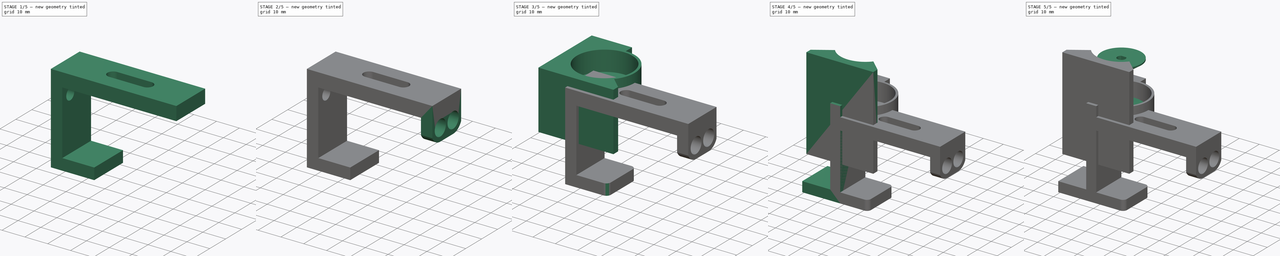
[diagram: build sequence overview — one tinted view per stage of 5, left to right]
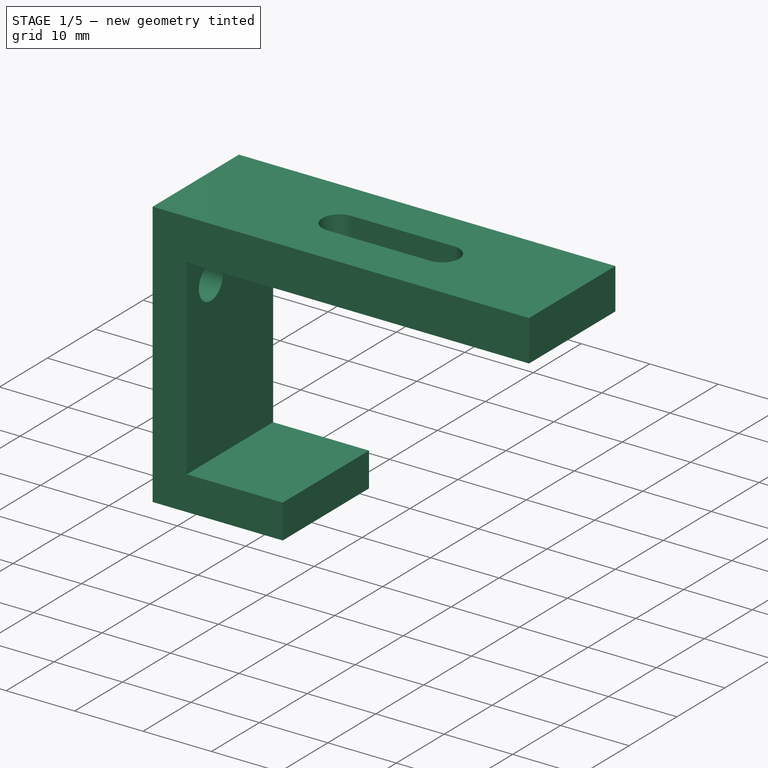
[diagram: stage 1 of 5 — iso view after this stage's code; geometry added in this stage tinted green]
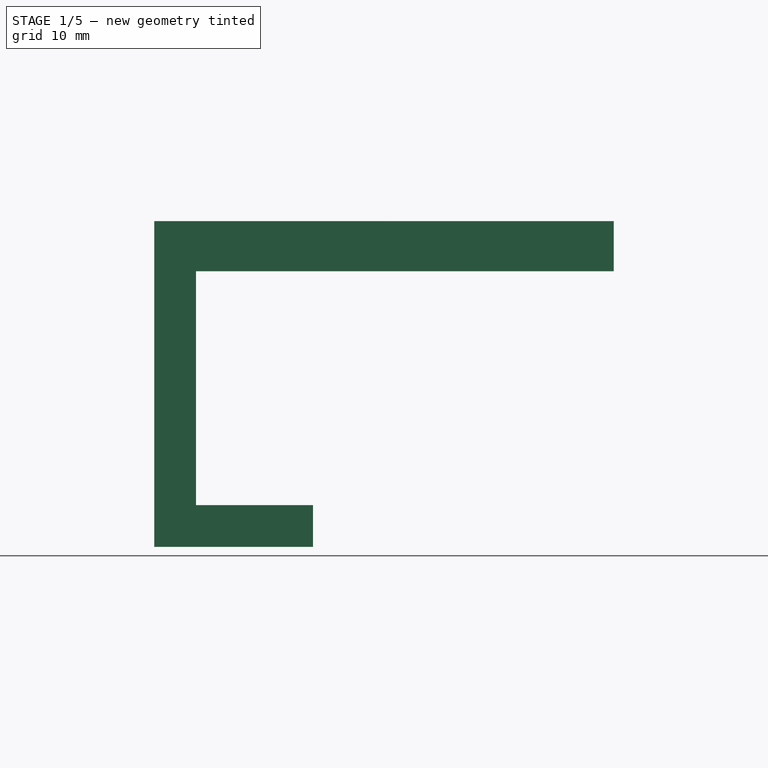
[diagram: stage 1 of 5 — front view after this stage's code; geometry added in this stage tinted green]
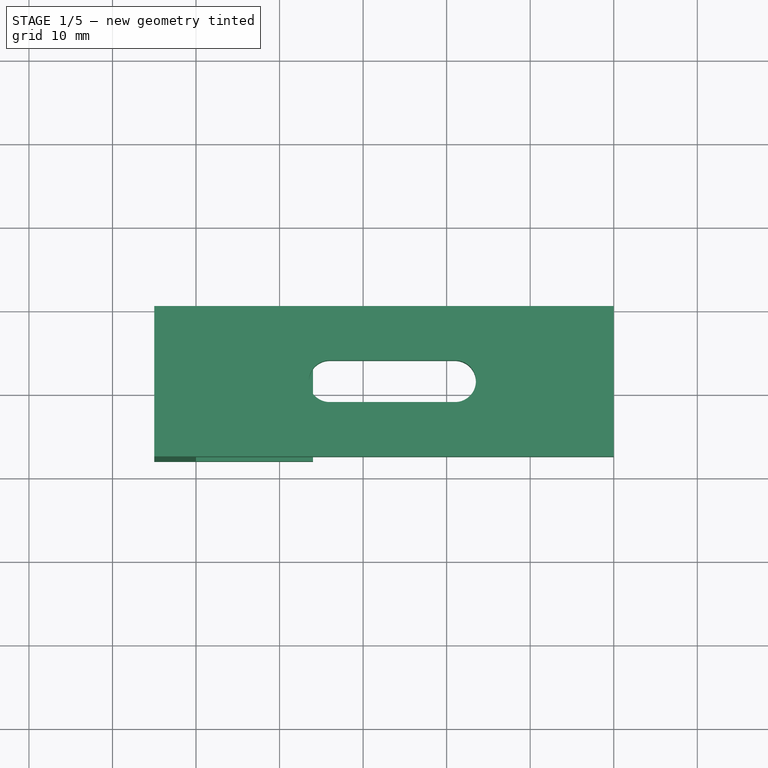
[diagram: stage 1 of 5 — top view after this stage's code; geometry added in this stage tinted green]
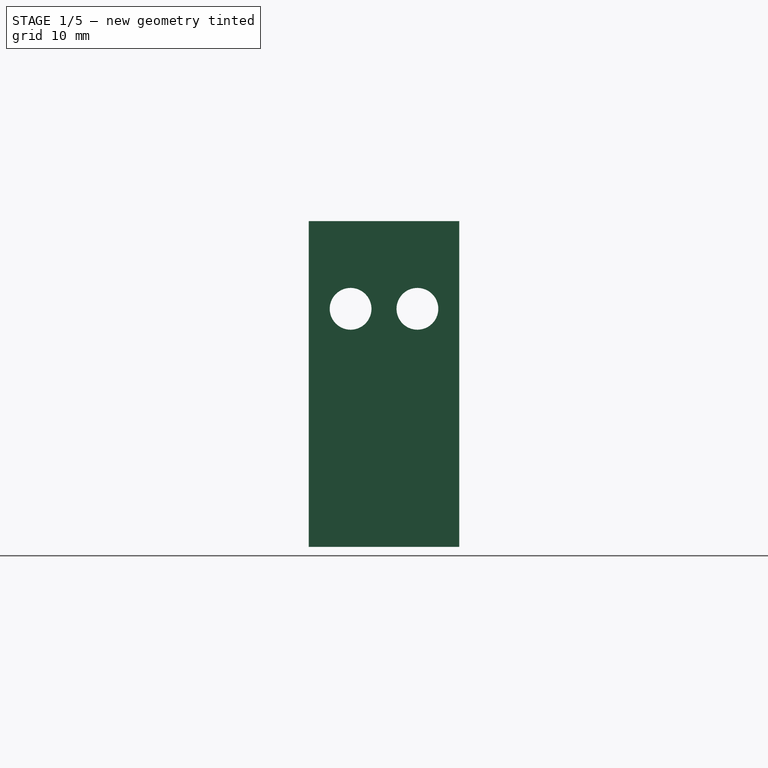
[diagram: stage 1 of 5 — right view after this stage's code; geometry added in this stage tinted green]
FCSTD DOCUMENT  (FreeCAD 1.0R39109 (Git))
Label: 25GA370MotorHolder
License: All rights reserved
LicenseURL: http://en.wikipedia.org/wiki/All_rights_reserved
objects: Sketcher::SketchObject×23, PartDesign::Pad×12, PartDesign::Pocket×10, PartDesign::Body×6, App::VarSet×1, Spreadsheet::Sheet×1, PartDesign::Groove×1
note: 121 computed .brp shape members not serialized (recipe doc carries the construction recipe); baked Part::Feature solids carry a one-line shape summary decoded from their .brp

FEATURE [PartDesign::Body] Body  label="MotorConnector"
  AllowCompound = false
  Group = -> [Sketch,Pad,Sketch001,Groove,Sketch006,Pocket]
  Origin = -> Origin
  Placement = pos=(0,0,-5) rot=(0,1,0;3.14159rad)
  Tip = -> Pocket
FEATURE [PartDesign::Body] Body004  label="Body"
  AllowCompound = false
  Origin = -> Origin004
FEATURE [Sketcher::SketchObject] Sketch007
  ArcFitTolerance = 1e-06
  AttachmentSupport = -> [XZ_Plane003]
  FullyConstrained = false
  MakeInternals = false
  MapMode = 5
  Placement = pos=(0,0,0) rot=(1,0,0;1.5708rad)
  expr: Constraints[14] = VarSet.blindTopBottomSupport
  expr: Constraints[15] = VarSet.blindTopHeight
  expr: Constraints[17] = VarSet.blindTopThickness
  expr: Constraints[18] = VarSet.blindTopWidth
  expr: Constraints[23] = VarSet.blindTopThickness
  expr: Constraints[38] = VarSet.blindTopConnThickness
  expr: Constraints[45] = VarSet.blindTopThickness
  sketch-geometry (19):
    g0: LineSegment [constr] StartX=0 StartY=0 StartZ=0 EndX=0 EndY=-28 EndZ=0
    g1: LineSegment [constr] StartX=0 StartY=-28 StartZ=0 EndX=14 EndY=-28 EndZ=0
    g2: LineSegment [constr] StartX=45 StartY=-28 StartZ=0 EndX=45 EndY=0 EndZ=0
    g3: LineSegment [constr] StartX=45 StartY=0 StartZ=0 EndX=0 EndY=0 EndZ=0
    g4: LineSegment [constr] StartX=-5 StartY=6 StartZ=0 EndX=-5 EndY=-33 EndZ=0
    g5: LineSegment [constr] StartX=-5 StartY=-33 StartZ=0 EndX=14 EndY=-33 EndZ=0
    g6: LineSegment [constr] StartX=43.6703 StartY=6 StartZ=0 EndX=-5 EndY=6 EndZ=0
    g7: LineSegment [constr] StartX=14 StartY=-28 StartZ=0 EndX=14 EndY=-33 EndZ=0
    g8: LineSegment [constr] StartX=14 StartY=-28 StartZ=0 EndX=31 EndY=-28 EndZ=0
    g9: LineSegment [constr] StartX=14 StartY=-33 StartZ=0 EndX=31 EndY=-33 EndZ=0
    g10: LineSegment StartX=0 StartY=0 StartZ=0 EndX=45 EndY=0 EndZ=0
    g11: LineSegment StartX=50 StartY=6 StartZ=0 EndX=-5 EndY=6 EndZ=0
    g12: LineSegment StartX=-5 StartY=6 StartZ=0 EndX=-5 EndY=-33 EndZ=0
    g13: LineSegment StartX=-5 StartY=-33 StartZ=0 EndX=14 EndY=-33 EndZ=0
    g14: LineSegment StartX=14 StartY=-33 StartZ=0 EndX=14 EndY=-28 EndZ=0
    g15: LineSegment StartX=14 StartY=-28 StartZ=0 EndX=0 EndY=-28 EndZ=0
    g16: LineSegment StartX=0 StartY=-28 StartZ=0 EndX=0 EndY=0 EndZ=0
    g17: LineSegment StartX=50 StartY=6 StartZ=0 EndX=50 EndY=0 EndZ=0
    g18: LineSegment StartX=50 StartY=0 StartZ=0 EndX=45 EndY=0 EndZ=0
  constraints (46):
    c: Coincident(g0,g1)
    c: Coincident(g2,g3)
    c: Coincident(g3,g0)
    c: Vertical(g0)
    c: Vertical(g2)
    c: Horizontal(g1)
    c: Horizontal(g3)
    c: Coincident(g6,g4)
    c: Vertical(g4)
    c: Horizontal(g5)
    c: Horizontal(g6)
    c: Vertical(g7)
    c: Coincident(g1,g7)
    c: Coincident(g5,g7)
    c: DistanceX(g1,g1) = 14
    c: DistanceY(g0,g0) = 28
    c: Coincident(g5,g4)
    c: DistanceY(g4,g0) = 5
    c: DistanceX(g3,g3) = 45
    c: Coincident(g8,g1)
    c: Coincident(g9,g5)
    c: Horizontal(g9)
    c: Horizontal(g8)
    c: DistanceX(g4,g0) = 5
    c: Coincident(g0,g-1)
    c: Coincident(g10,g0)
    c: Coincident(g10,g2)
    c: Coincident(g11,g4)
    c: Coincident(g12,g4)
    c: Coincident(g12,g4)
    c: Coincident(g13,g4)
    c: Coincident(g13,g5)
    c: Coincident(g14,g5)
    c: Coincident(g14,g1)
    c: Coincident(g15,g1)
    c: Coincident(g15,g0)
    c: Coincident(g16,g0)
    c: Coincident(g16,g0)
    c: DistanceY(g0,g4) = 6
    c: Horizontal(g11)
    c: Coincident(g17,g11)
    c: Vertical(g17)
    c: Coincident(g18,g17)
    c: Coincident(g18,g2)
    c: Horizontal(g18)
    c: DistanceX(g2,g17) = 5
FEATURE [PartDesign::Pad] Pad004
  Direction = (0,-1,2e-16)
  Length = 18
  Length2 = 10
  Placement = pos=(0,0,0) rot=(1,0,0;1.5708rad)
  Profile = -> Sketch007
  ReferenceAxis = -> Sketch007 [N_Axis]
  Refine = true
  Suppressed = false
  Type = 0
  expr: Length = VarSet.blindTopPad
FEATURE [Sketcher::SketchObject] Sketch008
  ArcFitTolerance = 1e-06
  AttachmentSupport = -> [XY_Plane003]
  FullyConstrained = true
  MakeInternals = false
  MapMode = 5
  expr: Constraints[10] = -VarSet.originalTopBlindHangerWidth / 2 + VarSet.blindScrewHoleR / 2
  expr: Constraints[8] = 25 mm - VarSet.blindTopThickness - 4 mm
  expr: Constraints[9] = VarSet.blindScrewHoleR
  sketch-geometry (8):
    g0: LineSegment [constr] StartX=16 StartY=-6.5 StartZ=0 EndX=16 EndY=-11.5 EndZ=0
    g1: LineSegment [constr] StartX=16 StartY=-11.5 StartZ=0 EndX=31 EndY=-11.5 EndZ=0
    g2: LineSegment [constr] StartX=31 StartY=-11.5 StartZ=0 EndX=31 EndY=-6.5 EndZ=0
    g3: LineSegment [constr] StartX=31 StartY=-6.5 StartZ=0 EndX=16 EndY=-6.5 EndZ=0
    g4: ArcOfCircle CenterX=16 CenterY=-9 CenterZ=0 NormalX=0 NormalY=0 NormalZ=1 AngleXU=0 Radius=2.5 StartAngle=1.5708 EndAngle=4.71239
    g5: ArcOfCircle CenterX=31 CenterY=-9 CenterZ=0 NormalX=0 NormalY=0 NormalZ=1 AngleXU=0 Radius=2.5 StartAngle=4.71239 EndAngle=7.85398
    g6: LineSegment StartX=16 StartY=-6.5 StartZ=0 EndX=31 EndY=-6.5 EndZ=0
    g7: LineSegment StartX=16 StartY=-11.5 StartZ=0 EndX=31 EndY=-11.5 EndZ=0
  constraints (19):
    c: Coincident(g0,g1)
    c: Coincident(g1,g2)
    c: Coincident(g2,g3)
    c: Coincident(g3,g0)
    c: Vertical(g0)
    c: Vertical(g2)
    c: Horizontal(g1)
    c: DistanceX(g3,g3) = 15
    c: DistanceX(g-1,g0) = 16
    c: DistanceY(g0,g0) = 5
    c: DistanceY(g-1,g0) = -6.5
    c: Tangent(g4,g6) = 1.5708
    c: Tangent(g4,g7) = -1.5708
    c: Tangent(g5,g6) = 1.5708
    c: Tangent(g5,g7) = -1.5708
    c: Equal(g4,g5)
    c: Symmetric(g0,g0,g4)
    c: Coincident(g4,g0)
    c: Coincident(g5,g2)
FEATURE [PartDesign::Pocket] Pocket001
  BaseFeature = -> Pad004
  Direction = (0,0,-1)
  Length = 5
  Length2 = 5
  Placement = pos=(0,0,0) rot=(1,0,0;1.5708rad)
  Profile = -> Sketch008
  ReferenceAxis = -> Sketch008 [N_Axis]
  Refine = true
  Reversed = true
  Suppressed = false
  Type = 1
FEATURE [Sketcher::SketchObject] Sketch009
  ArcFitTolerance = 1e-06
  AttachmentSupport = -> [YZ_Plane003]
  FullyConstrained = true
  MakeInternals = false
  MapMode = 5
  Placement = pos=(0,0,0) rot=(0.57735,0.57735,0.57735;2.0944rad)
  expr: Constraints[0] = VarSet.blindScrewHoleR
  expr: Constraints[1] = 7 mm + VarSet.blindScrewHoleR / 2 - VarSet.blindTopThickness
  expr: Constraints[2] = VarSet.blindTopSideScrewHoleToSide
  expr: Constraints[7] = VarSet.blindTopPad - VarSet.blindTopSideScrewHoleToSide
  sketch-geometry (3):
    g0: Circle CenterX=-5 CenterY=-4.5 CenterZ=0 NormalX=0 NormalY=0 NormalZ=1 AngleXU=0 Radius=2.5
    g1: Circle CenterX=-13 CenterY=-4.5 CenterZ=0 NormalX=0 NormalY=0 NormalZ=1 AngleXU=0 Radius=2.5
    g2: LineSegment [constr] StartX=-5 StartY=-4.5 StartZ=0 EndX=-13 EndY=-4.5 EndZ=0
  constraints (8):
    c: Diameter(g0) = 5
    c: DistanceY(g0,g-1) = 4.5
    c: DistanceX(g0,g-1) = 5
    c: Coincident(g2,g0)
    c: Coincident(g2,g1)
    c: Horizontal(g2)
    c: Equal(g1,g0)
    c: DistanceX(g1,g-1) = 13
FEATURE [PartDesign::Pocket] Pocket002
  BaseFeature = -> Pocket001
  Direction = (-1,0,0)
  Length = 5
  Length2 = 5
  Placement = pos=(0,0,0) rot=(1,0,0;1.5708rad)
  Profile = -> Sketch009
  ReferenceAxis = -> Sketch009 [N_Axis]
  Refine = true
  Suppressed = false
  Type = 1
FEATURE [Sketcher::SketchObject] Sketch010
  ArcFitTolerance = 1e-06
  AttachmentOffset = pos=(0,0,45) rot=(0,0,1;0rad)
  AttachmentSupport = -> [YZ_Plane003]
  FullyConstrained = true
  MakeInternals = false
  MapMode = 5
  Placement = pos=(45,0,0) rot=(0.57735,0.57735,0.57735;2.0944rad)
  expr: .AttachmentOffset.Base.z = VarSet.blindTopWidth
  expr: Constraints[5] = VarSet.m3ScrewTight
  expr: Constraints[7] = VarSet.blindTopConnThickness / 2
  sketch-geometry (3):
    g0: Circle CenterX=-4.5 CenterY=3 CenterZ=0 NormalX=0 NormalY=0 NormalZ=1 AngleXU=0 Radius=1.4
    g1: LineSegment [constr] StartX=-4.5 StartY=3 StartZ=0 EndX=-10.5 EndY=3 EndZ=0
    g2: Circle CenterX=-10.5 CenterY=3 CenterZ=0 NormalX=0 NormalY=0 NormalZ=1 AngleXU=0 Radius=1.4
  constraints (8):
    c: Coincident(g1,g0)
    c: Horizontal(g1)
    c: DistanceX(g1,g1) = 6
    c: DistanceX(g0,g-1) = 4.5
    c: Coincident(g2,g1)
    c: Radius(g2) = 1.4
    c: Equal(g2,g0)
    c: DistanceY(g-1,g0) = 3
FEATURE [PartDesign::Pocket] Pocket003
  BaseFeature = -> Pocket002
  Direction = (-1,0,0)
  Length = 15
  Length2 = 5
  Placement = pos=(0,0,0) rot=(1,0,0;1.5708rad)
  Profile = -> Sketch010
  ReferenceAxis = -> Sketch010 [N_Axis]
  Refine = true
  Suppressed = true
  Type = 1
FEATURE [Sketcher::SketchObject] Sketch011
  ArcFitTolerance = 1e-06
  AttachmentSupport = -> [XZ_Plane005]
  FullyConstrained = false
  MakeInternals = false
  MapMode = 5
  Placement = pos=(0,0,0) rot=(1,0,0;1.5708rad)
  expr: Constraints[10] = VarSet.blindTopThickness
  expr: Constraints[11] = VarSet.blindTopBottomSupport
  expr: Constraints[16] = VarSet.blindTopConnThickness
  expr: Constraints[24] = VarSet.blindTopThickness
  expr: Constraints[9] = VarSet.blindTopThickness
  sketch-geometry (9):
    g0: LineSegment StartX=-5 StartY=6 StartZ=0 EndX=-5 EndY=-28 EndZ=0
    g1: LineSegment StartX=0 StartY=6 StartZ=0 EndX=0 EndY=-33 EndZ=0
    g2: LineSegment StartX=0 StartY=-33 StartZ=0 EndX=-19 EndY=-33 EndZ=0
    g3: LineSegment StartX=-19 StartY=-33 StartZ=0 EndX=-19 EndY=-28 EndZ=0
    g4: LineSegment StartX=-19 StartY=-28 StartZ=0 EndX=-5 EndY=-28 EndZ=0
    g5: LineSegment [constr] StartX=-5 StartY=6 StartZ=0 EndX=0 EndY=6 EndZ=0
    g6: LineSegment StartX=-5 StartY=6 StartZ=0 EndX=-5 EndY=11 EndZ=0
    g7: LineSegment StartX=-5 StartY=11 StartZ=0 EndX=0 EndY=11 EndZ=0
    g8: LineSegment StartX=0 StartY=11 StartZ=0 EndX=0 EndY=6 EndZ=0
  constraints (25):
    c: Vertical(g0)
    c: Vertical(g1)
    c: Coincident(g2,g1)
    c: Horizontal(g2)
    c: Coincident(g3,g2)
    c: Vertical(g3)
    c: Coincident(g4,g3)
    c: Coincident(g4,g0)
    c: Horizontal(g4)
    c: DistanceX(g0,g1) = 5
    c: DistanceY(g3,g3) = 5
    c: DistanceX(g4,g4) = 14
    c: PointOnObject(g-1,g1)
    c: Coincident(g5,g0)
    c: Coincident(g5,g1)
    c: Horizontal(g5)
    c: DistanceY(g-1,g1) = 6
    c: Coincident(g6,g0)
    c: Coincident(g7,g6)
    c: Horizontal(g7)
    c: Coincident(g8,g7)
    c: Coincident(g8,g1)
    c: Vertical(g8)
    c: Vertical(g6)
    c: DistanceY(g8,g8) = 5
FEATURE [Sketcher::SketchObject] Sketch012
  ArcFitTolerance = 1e-06
  AttachmentSupport = -> [XY_Plane003]
  FullyConstrained = true
  MakeInternals = false
  MapMode = 5
  expr: Constraints[10] = VarSet.blindTopWidth + VarSet.blindTopThickness
  expr: Constraints[11] = (VarSet.blindTopPad - VarSet.blindTopConnOpening) / 2
  expr: Constraints[8] = VarSet.blindTopConnOpening
  expr: Constraints[9] = VarSet.blindTopWidth
  sketch-geometry (4):
    g0: LineSegment StartX=45 StartY=-6 StartZ=0 EndX=45 EndY=-12 EndZ=0
    g1: LineSegment StartX=45 StartY=-12 StartZ=0 EndX=50 EndY=-12 EndZ=0
    g2: LineSegment StartX=50 StartY=-12 StartZ=0 EndX=50 EndY=-6 EndZ=0
    g3: LineSegment StartX=50 StartY=-6 StartZ=0 EndX=45 EndY=-6 EndZ=0
  constraints (12):
    c: Coincident(g0,g1)
    c: Coincident(g1,g2)
    c: Coincident(g2,g3)
    c: Coincident(g3,g0)
    c: Vertical(g0)
    c: Vertical(g2)
    c: Horizontal(g1)
    c: Horizontal(g3)
    c: DistanceY(g2,g2) = 6
    c: DistanceX(g-1,g0) = 45
    c: DistanceX(g-1,g2) = 50
    c: DistanceY(g0,g-1) = 6
FEATURE [PartDesign::Pocket] Pocket004
  BaseFeature = -> Pocket003
  Direction = (0,0,-1)
  Length = 5
  Length2 = 5
  Midplane = true
  Placement = pos=(0,0,0) rot=(1,0,0;1.5708rad)
  Profile = -> Sketch012
  ReferenceAxis = -> Sketch012 [N_Axis]
  Refine = true
  Suppressed = true
  Type = 1
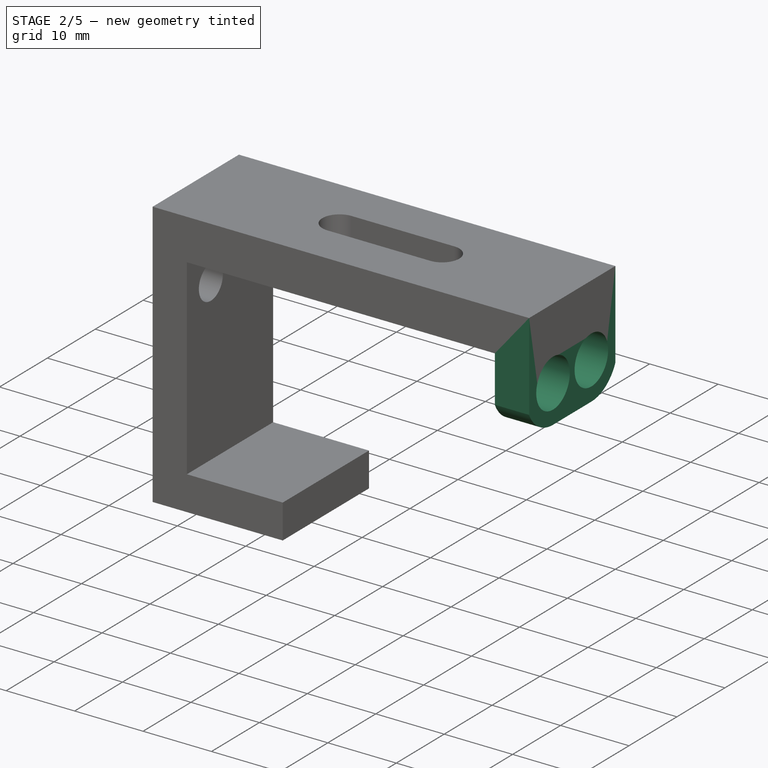
[diagram: stage 2 of 5 — iso view after this stage's code; geometry added in this stage tinted green]
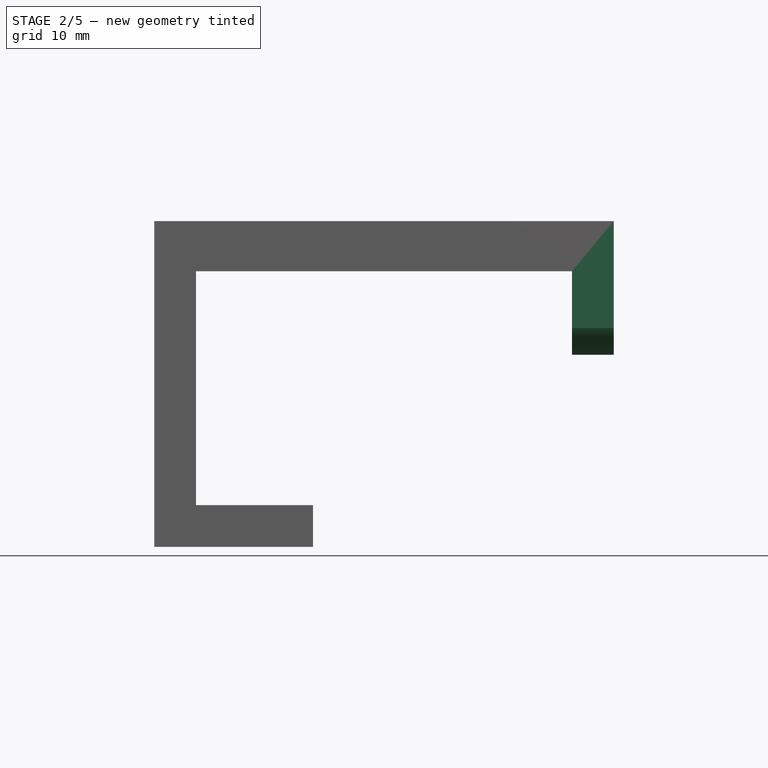
[diagram: stage 2 of 5 — front view after this stage's code; geometry added in this stage tinted green]
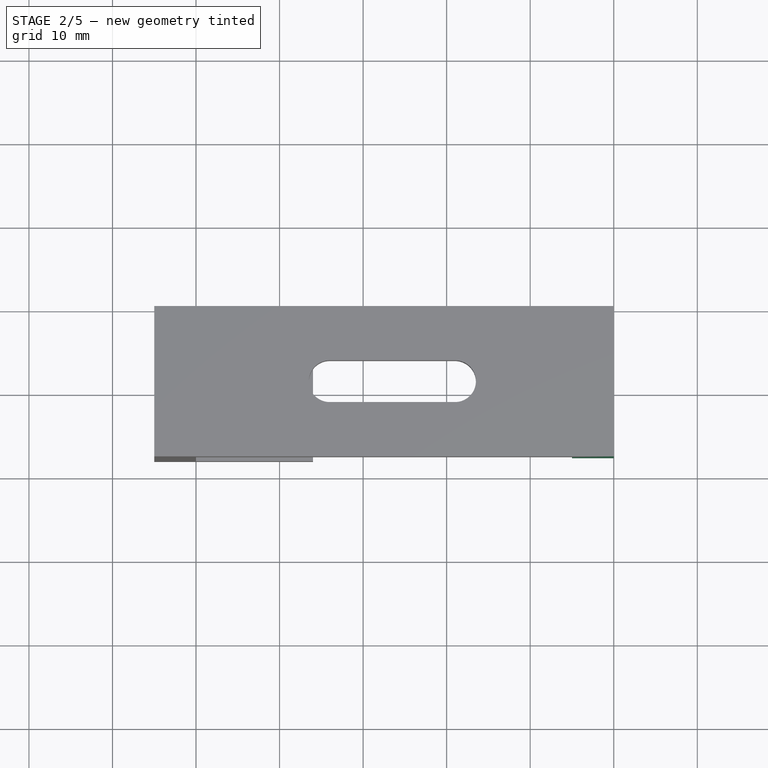
[diagram: stage 2 of 5 — top view after this stage's code; geometry added in this stage tinted green]
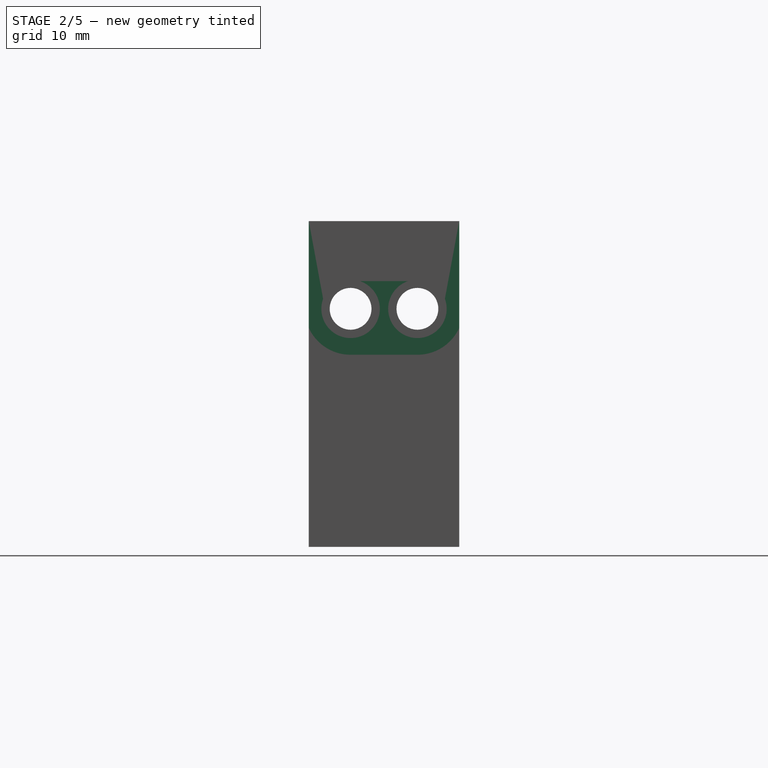
[diagram: stage 2 of 5 — right view after this stage's code; geometry added in this stage tinted green]
FEATURE [PartDesign::Body] Body001  label="motorHolder"
  AllowCompound = false
  Group = -> [Sketch002,Pad001,Sketch003,Pad002,Sketch015,Sketch016,Pad006,Pad007,Sketch017,Pad008,Pad009,Sketch018,Pad010]
  Origin = -> Origin001
  Tip = -> Pad010
FEATURE [Sketcher::SketchObject] Sketch019
  ArcFitTolerance = 1e-06
  AttachmentSupport = -> [XY_Plane003]
  FullyConstrained = true
  MakeInternals = false
  MapMode = 5
  expr: Constraints[10] = VarSet.blindTopPad
  expr: Constraints[11] = VarSet.blindTopThickness
  expr: Constraints[8] = VarSet.blindTopWidth
  sketch-geometry (4):
    g0: LineSegment StartX=45 StartY=0 StartZ=0 EndX=45 EndY=-18 EndZ=0
    g1: LineSegment StartX=45 StartY=-18 StartZ=0 EndX=50 EndY=-18 EndZ=0
    g2: LineSegment StartX=50 StartY=-18 StartZ=0 EndX=50 EndY=0 EndZ=0
    g3: LineSegment StartX=50 StartY=0 StartZ=0 EndX=45 EndY=0 EndZ=0
  constraints (12):
    c: Coincident(g0,g1)
    c: Coincident(g1,g2)
    c: Coincident(g2,g3)
    c: Coincident(g3,g0)
    c: Vertical(g0)
    c: Vertical(g2)
    c: Horizontal(g1)
    c: Horizontal(g3)
    c: DistanceX(g-1,g0) = 45
    c: PointOnObject(g2,g-1)
    c: DistanceY(g0,g0) = 18
    c: DistanceX(g3,g3) = 5
FEATURE [PartDesign::Pocket] Pocket006
  BaseFeature = -> Pocket004
  Direction = (0,0,-1)
  Length = 6
  Length2 = 5
  Placement = pos=(0,0,0) rot=(1,0,0;1.5708rad)
  Profile = -> Sketch019
  ReferenceAxis = -> Sketch019 [N_Axis]
  Refine = true
  Reversed = true
  Suppressed = true
  Type = 0
  expr: Length = VarSet.blindTopConnThickness
FEATURE [Sketcher::SketchObject] Sketch020
  ArcFitTolerance = 1e-06
  AttachmentSupport = -> [XY_Plane003]
  FullyConstrained = true
  MakeInternals = false
  MapMode = 5
  expr: Constraints[10] = VarSet.blindTopWidth
  expr: Constraints[11] = VarSet.blindTopThickness
  expr: Constraints[9] = VarSet.blindTopPad
  sketch-geometry (4):
    g0: LineSegment StartX=45 StartY=0 StartZ=0 EndX=45 EndY=-18 EndZ=0
    g1: LineSegment StartX=45 StartY=-18 StartZ=0 EndX=50 EndY=-18 EndZ=0
    g2: LineSegment StartX=50 StartY=-18 StartZ=0 EndX=50 EndY=0 EndZ=0
    g3: LineSegment StartX=50 StartY=0 StartZ=0 EndX=45 EndY=0 EndZ=0
  constraints (12):
    c: Coincident(g0,g1)
    c: Coincident(g1,g2)
    c: Coincident(g2,g3)
    c: Coincident(g3,g0)
    c: Vertical(g0)
    c: Vertical(g2)
    c: Horizontal(g1)
    c: Horizontal(g3)
    c: PointOnObject(g0,g-1)
    c: DistanceY(g2,g2) = 18
    c: DistanceX(g-1,g0) = 45
    c: DistanceX(g3,g3) = 5
FEATURE [PartDesign::Pad] Pad011
  BaseFeature = -> Pocket006
  Direction = (0,0,1)
  Length = 10
  Length2 = 10
  Placement = pos=(0,0,0) rot=(1,0,0;1.5708rad)
  Profile = -> Sketch020
  ReferenceAxis = -> Sketch020 [N_Axis]
  Refine = true
  Reversed = true
  Suppressed = false
  Type = 0
FEATURE [Sketcher::SketchObject] Sketch021
  ArcFitTolerance = 1e-06
  AttachmentOffset = pos=(0,0,45) rot=(0,0,1;0rad)
  AttachmentSupport = -> [YZ_Plane003]
  ExternalGeometry = -> [Pad011]
  FullyConstrained = true
  MakeInternals = false
  MapMode = 5
  Placement = pos=(45,0,0) rot=(0.57735,0.57735,0.57735;2.0944rad)
  expr: .AttachmentOffset.Base.z = VarSet.blindTopWidth
  sketch-geometry (2):
    g0: Circle CenterX=-13 CenterY=-4.5 CenterZ=0 NormalX=0 NormalY=0 NormalZ=1 AngleXU=0 Radius=3.5
    g1: Circle CenterX=-5 CenterY=-4.5 CenterZ=0 NormalX=0 NormalY=0 NormalZ=1 AngleXU=0 Radius=3.5
  constraints (4):
    c: Coincident(g0,g-3)
    c: Coincident(g1,g-4)
    c: Equal(g0,g1)
    c: Radius(g0) = 3.5
FEATURE [PartDesign::Pocket] Pocket007
  BaseFeature = -> Pad011
  Direction = (-1,0,0)
  Length = 5
  Length2 = 5
  Placement = pos=(0,0,0) rot=(1,0,0;1.5708rad)
  Profile = -> Sketch021
  ReferenceAxis = -> Sketch021 [N_Axis]
  Refine = true
  Reversed = true
  Suppressed = false
  Type = 0
  expr: Length = VarSet.blindTopThickness
FEATURE [Sketcher::SketchObject] Sketch022
  ArcFitTolerance = 1e-06
  AttachmentOffset = pos=(0,0,45) rot=(0,0,1;0rad)
  AttachmentSupport = -> [YZ_Plane003]
  ExternalGeometry = -> [Pocket007]
  FullyConstrained = true
  MakeInternals = false
  MapMode = 5
  Placement = pos=(45,0,0) rot=(0.57735,0.57735,0.57735;2.0944rad)
  expr: .AttachmentOffset.Base.z = VarSet.blindTopWidth
  sketch-geometry (6):
    g0: ArcOfCircle CenterX=-13 CenterY=-4.5 CenterZ=0 NormalX=0 NormalY=0 NormalZ=1 AngleXU=0 Radius=5.5 StartAngle=3.57129 EndAngle=4.71239
    g1: LineSegment StartX=-18 StartY=-10 StartZ=0 EndX=-13 EndY=-10 EndZ=0
    g2: LineSegment StartX=0 StartY=-10 StartZ=0 EndX=0 EndY=-6.79129 EndZ=0
    g3: ArcOfCircle CenterX=-5 CenterY=-4.5 CenterZ=0 NormalX=0 NormalY=0 NormalZ=1 AngleXU=0 Radius=5.5 StartAngle=4.71239 EndAngle=5.85349
    g4: LineSegment StartX=-5 StartY=-10 StartZ=0 EndX=0 EndY=-10 EndZ=0
    g5: LineSegment StartX=-18 StartY=-6.79129 StartZ=0 EndX=-18 EndY=-10 EndZ=0
  constraints (15):
    c: Coincident(g4,g2)
    c: Horizontal(g1)
    c: Vertical(g2)
    c: Coincident(g2,g3)
    c: PointOnObject(g4,g3)
    c: Horizontal(g4)
    c: Coincident(g2,g-3)
    c: Tangent(g3,g4) = -1.5708
    c: Coincident(g5,g0)
    c: Coincident(g5,g1)
    c: Coincident(g3,g-4)
    c: Coincident(g0,g-5)
    c: Vertical(g5)
    c: Tangent(g0,g1) = -1.5708
    c: Coincident(g1,g-6)
FEATURE [PartDesign::Pocket] Pocket008
  BaseFeature = -> Pocket007
  Direction = (-1,0,0)
  Length = 5
  Length2 = 5
  Placement = pos=(0,0,0) rot=(1,0,0;1.5708rad)
  Profile = -> Sketch022
  ReferenceAxis = -> Sketch022 [N_Axis]
  Refine = true
  Reversed = true
  Suppressed = false
  Type = 0
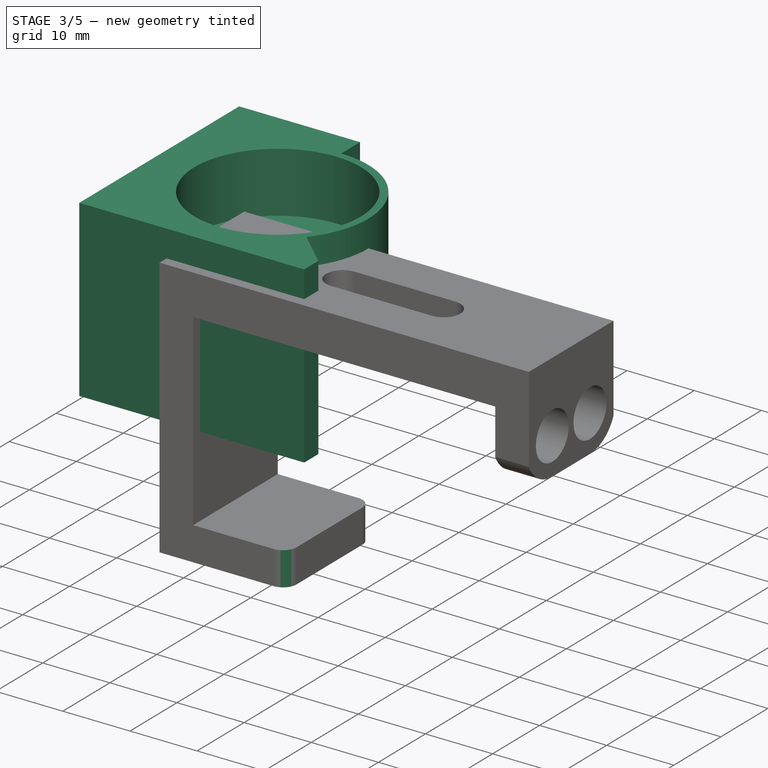
[diagram: stage 3 of 5 — iso view after this stage's code; geometry added in this stage tinted green]
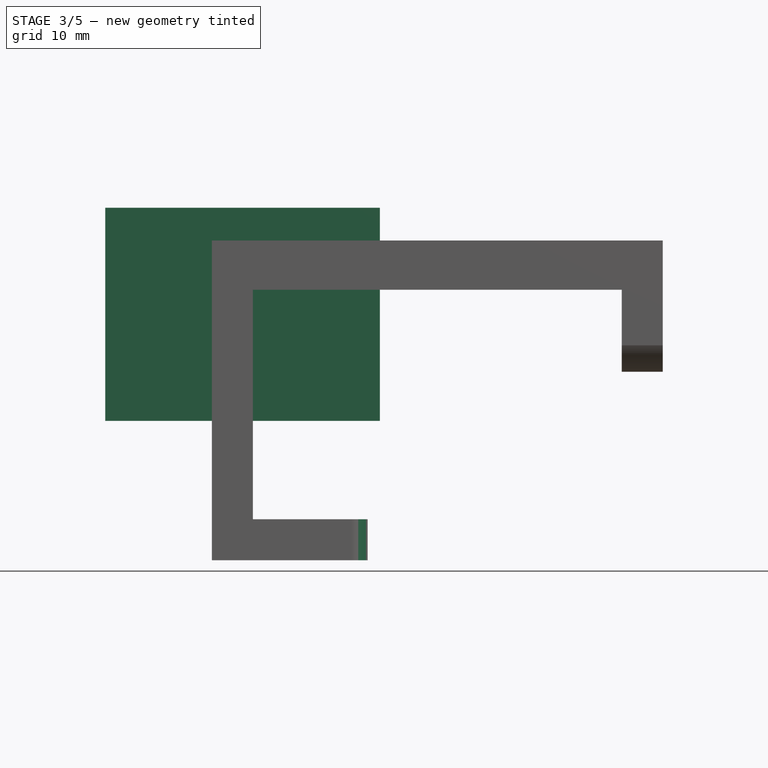
[diagram: stage 3 of 5 — front view after this stage's code; geometry added in this stage tinted green]
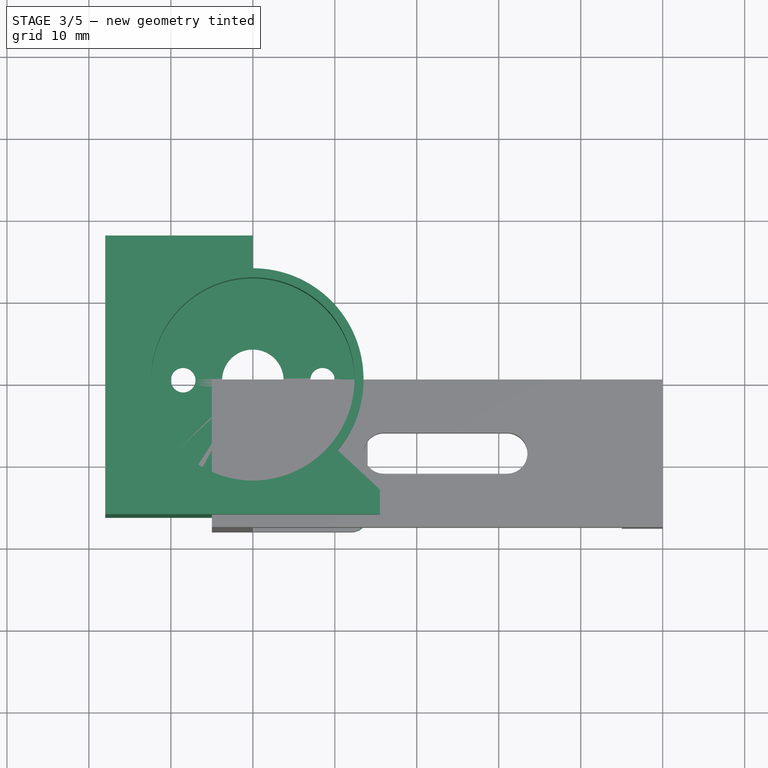
[diagram: stage 3 of 5 — top view after this stage's code; geometry added in this stage tinted green]
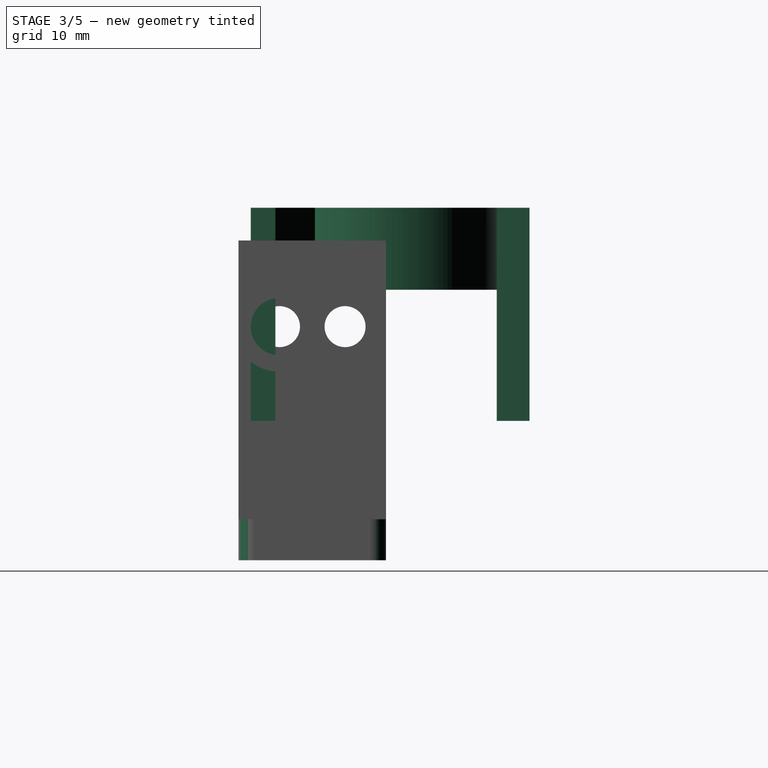
[diagram: stage 3 of 5 — right view after this stage's code; geometry added in this stage tinted green]
FEATURE [Sketcher::SketchObject] Sketch002
  ArcFitTolerance = 1e-06
  AttachmentSupport = -> [XY_Plane001]
  FullyConstrained = true
  MakeInternals = false
  MapMode = 5
  expr: Constraints[2] = VarSet.motorOutsideR + VarSet.motorHolderThickness
  expr: Constraints[3] = VarSet.motorTopHoleR
  expr: Constraints[6] = VarSet.motorScrewToCenterR
  sketch-geometry (5):
    g0: Circle CenterX=0 CenterY=0 CenterZ=0 NormalX=0 NormalY=0 NormalZ=1 AngleXU=0 Radius=13.5
    g1: Circle CenterX=0 CenterY=0 CenterZ=0 NormalX=0 NormalY=0 NormalZ=1 AngleXU=0 Radius=3.75
    g2: LineSegment [constr] StartX=-8.5 StartY=0 StartZ=0 EndX=8.5 EndY=0 EndZ=0
    g3: Circle CenterX=-8.5 CenterY=0 CenterZ=0 NormalX=0 NormalY=0 NormalZ=1 AngleXU=0 Radius=1.5
    g4: Circle CenterX=8.5 CenterY=0 CenterZ=0 NormalX=0 NormalY=0 NormalZ=1 AngleXU=0 Radius=1.5
  constraints (11):
    c: Coincident(g0,g-1)
    c: Coincident(g1,g0)
    c: Radius(g0) = 13.5
    c: Radius(g1) = 3.75
    c: PointOnObject(g2,g-1)
    c: Symmetric(g2,g2,g-2)
    c: DistanceX(g0,g2) = 8.5
    c: Coincident(g3,g2)
    c: Coincident(g4,g2)
    c: Equal(g3,g4)
    c: Radius(g3) = 1.5
FEATURE [PartDesign::Pad] Pad001  label="MotorFaceAndScrew"
  Direction = (0,0,1)
  Length = 1
  Length2 = 10
  Profile = -> Sketch002
  ReferenceAxis = -> Sketch002 [N_Axis]
  Refine = true
  Suppressed = false
  Type = 0
  expr: Length = VarSet.motorHolderThickness
FEATURE [Sketcher::SketchObject] Sketch003
  ArcFitTolerance = 1e-06
  AttachmentSupport = -> [XY_Plane001]
  FullyConstrained = true
  MakeInternals = false
  MapMode = 5
  expr: Constraints[2] = VarSet.motorOutsideR - 0.1 mm
  expr: Constraints[3] = VarSet.motorOutsideR + VarSet.motorHolderThickness
  sketch-geometry (2):
    g0: Circle CenterX=0 CenterY=0 CenterZ=0 NormalX=0 NormalY=0 NormalZ=1 AngleXU=0 Radius=13.5
    g1: Circle CenterX=0 CenterY=0 CenterZ=0 NormalX=0 NormalY=0 NormalZ=1 AngleXU=0 Radius=12.4
  constraints (4):
    c: Coincident(g0,g-1)
    c: Coincident(g1,g0)
    c: Radius(g1) = 12.4
    c: Radius(g0) = 13.5
FEATURE [PartDesign::Pad] Pad002  label="Pad002MotorOvalContainer"
  BaseFeature = -> Pad001
  Direction = (0,0,1)
  Length = 10
  Length2 = 10
  Profile = -> Sketch003
  ReferenceAxis = -> Sketch003 [N_Axis]
  Refine = true
  Suppressed = false
  Type = 0
FEATURE [PartDesign::Body] Body005  label="blindTopDoor"
  AllowCompound = false
  Group = -> [Sketch011,Pad005,Sketch014,Pocket005]
  Origin = -> Origin005
  Placement = pos=(50,0,0) rot=(0,0,1;0rad)
  Tip = -> Pocket005
  expr: .Placement.Base.x = VarSet.blindTopThickness + VarSet.blindTopWidth
FEATURE [Sketcher::SketchObject] Sketch015
  ArcFitTolerance = 1e-06
  AttachmentSupport = -> [XY_Plane001]
  FullyConstrained = true
  MakeInternals = false
  MapMode = 5
  expr: Constraints[10] = VarSet.MotorSupportWireSidelen
  expr: Constraints[21] = VarSet.motorOutsideR + VarSet.motorHolderThickness
  expr: Constraints[22] = VarSet.MotorSupportWireSidelen
  expr: Constraints[9] = VarSet.motorOutsideR + VarSet.motorHolderThickness
  sketch-geometry (8):
    g0: LineSegment StartX=-18 StartY=-13.5 StartZ=0 EndX=-18 EndY=-16.5 EndZ=0
    g1: LineSegment StartX=-18 StartY=-16.5 StartZ=0 EndX=15.5 EndY=-16.5 EndZ=0
    g2: LineSegment StartX=15.5 StartY=-16.5 StartZ=0 EndX=15.5 EndY=-13.5 EndZ=0
    g3: LineSegment StartX=15.5 StartY=-13.5 StartZ=0 EndX=-18 EndY=-13.5 EndZ=0
    g4: LineSegment StartX=-18 StartY=17.5 StartZ=0 EndX=-18 EndY=13.5 EndZ=0
    g5: LineSegment StartX=-18 StartY=13.5 StartZ=0 EndX=0 EndY=13.5 EndZ=0
    g6: LineSegment StartX=0 StartY=13.5 StartZ=0 EndX=0 EndY=17.5 EndZ=0
    g7: LineSegment StartX=0 StartY=17.5 StartZ=0 EndX=-18 EndY=17.5 EndZ=0
  constraints (24):
    c: Coincident(g0,g1)
    c: Coincident(g1,g2)
    c: Coincident(g2,g3)
    c: Coincident(g3,g0)
    c: Vertical(g0)
    c: Vertical(g2)
    c: Horizontal(g1)
    c: Horizontal(g3)
    c: DistanceY(g2,g2) = 3
    c: DistanceY(g2,g-1) = 13.5
    c: DistanceX(g0,g-1) = 18
    c: Coincident(g4,g5)
    c: Coincident(g5,g6)
    c: Coincident(g6,g7)
    c: Coincident(g7,g4)
    c: Vertical(g4)
    c: Vertical(g6)
    c: Horizontal(g5)
    c: Horizontal(g7)
    c: PointOnObject(g5,g-2)
    c: DistanceY(g6,g6) = 4
    c: DistanceY(g-1,g5) = 13.5
    c: DistanceX(g7,g7) = 18
    c: DistanceX(g-1,g2) = 15.5
FEATURE [Sketcher::SketchObject] Sketch016
  ArcFitTolerance = 1e-06
  AttachmentSupport = -> [XY_Plane001]
  ExternalGeometry = -> [Sketch015]
  FullyConstrained = false
  MakeInternals = false
  MapMode = 5
  expr: Constraints[16] = VarSet.motorOutsideR + VarSet.motorHolderThickness + 4 mm
  expr: Constraints[18] = VarSet.MotorSupportWireSidelen
  expr: Constraints[1] = VarSet.motorOutsideR
  sketch-geometry (8):
    g0: ArcOfCircle CenterX=0 CenterY=0 CenterZ=0 NormalX=0 NormalY=0 NormalZ=1 AngleXU=0 Radius=12.5 StartAngle=1.5708 EndAngle=5.58869
    g1: LineSegment StartX=9.60469 StartY=-8 StartZ=0 EndX=15.5 EndY=-13.5 EndZ=0
    g2: LineSegment StartX=15.5 StartY=-13.5 StartZ=0 EndX=15.5 EndY=-16.5 EndZ=0
    g3: LineSegment StartX=15.5 StartY=-16.5 StartZ=0 EndX=-18 EndY=-16.5 EndZ=0
    g4: LineSegment StartX=-18 StartY=-16.5 StartZ=0 EndX=-18 EndY=-16.5 EndZ=0
    g5: LineSegment StartX=8e-16 StartY=12.5 StartZ=0 EndX=8e-16 EndY=17.5 EndZ=0
    g6: LineSegment StartX=8e-16 StartY=17.5 StartZ=0 EndX=-18 EndY=17.5 EndZ=0
    g7: LineSegment StartX=-18 StartY=17.5 StartZ=0 EndX=-18 EndY=-16.5 EndZ=0
  constraints (19):
    c: Coincident(g0,g-1)
    c: Radius(g0) = 12.5
    c: Coincident(g2,g1)
    c: Coincident(g2,g-3)
    c: Coincident(g3,g2)
    c: Coincident(g3,g-3)
    c: Coincident(g4,g3)
    c: DistanceY(g0,g0) = 8
    c: Coincident(g5,g0)
    c: Vertical(g5)
    c: Coincident(g6,g5)
    c: Horizontal(g6)
    c: Coincident(g7,g6)
    c: Coincident(g7,g4)
    c: Vertical(g7)
    c: PointOnObject(g5,g-2)
    c: DistanceY(g0,g5) = 17.5
    c: Horizontal(g4)
    c: DistanceX(g4,g0) = 18
FEATURE [PartDesign::Pad] Pad006  label="Pad006OutsideSupport"
  BaseFeature = -> Pad002
  Direction = (0,0,1)
  Length = 10
  Length2 = 10
  Profile = -> Sketch016
  ReferenceAxis = -> Sketch016 [N_Axis]
  Refine = true
  Suppressed = false
  Type = 0
FEATURE [PartDesign::Pad] Pad007  label="Pad007ToRod"
  BaseFeature = -> Pad006
  Direction = (0,0,1)
  Length = 16
  Length2 = 10
  Profile = -> Sketch015
  ReferenceAxis = -> Sketch015 [N_Axis]
  Refine = true
  Reversed = true
  Suppressed = false
  Type = 0
FEATURE [Sketcher::SketchObject] Sketch023
  ArcFitTolerance = 1e-06
  AttachmentOffset = pos=(0,0,-28) rot=(0,0,1;0rad)
  AttachmentSupport = -> [XY_Plane003]
  ExternalGeometry = -> [Pocket008,Sketch007]
  FullyConstrained = false
  MakeInternals = false
  MapMode = 5
  Placement = pos=(0,0,-28) rot=(0,0,1;0rad)
  expr: .AttachmentOffset.Base.z = -VarSet.blindTopHeight
  sketch-geometry (7):
    g0: ArcOfCircle CenterX=12 CenterY=-16 CenterZ=0 NormalX=0 NormalY=0 NormalZ=1 AngleXU=0 Radius=2 StartAngle=4.71239 EndAngle=6.28319
    g1: ArcOfCircle CenterX=12 CenterY=-2 CenterZ=0 NormalX=0 NormalY=0 NormalZ=1 AngleXU=0 Radius=2 StartAngle=2.365e-13 EndAngle=1.5708
    g2: LineSegment StartX=14 StartY=-18 StartZ=0 EndX=14 EndY=-16 EndZ=0
    g3: LineSegment StartX=12 StartY=-18 StartZ=0 EndX=14 EndY=-18 EndZ=0
    g4: LineSegment StartX=14 StartY=-2 StartZ=0 EndX=14 EndY=-7.3e-15 EndZ=0
    g5: LineSegment [constr] StartX=14 StartY=-0.351228 StartZ=0 EndX=12 EndY=-2 EndZ=0
    g6: LineSegment StartX=14 StartY=-7.3e-15 StartZ=0 EndX=12 EndY=-1.745e-13 EndZ=0
  constraints (15):
    c: Coincident(g5,g1)
    c: Coincident(g2,g-3)
    c: Coincident(g4,g-4)
    c: Coincident(g3,g2)
    c: Horizontal(g3)
    c: Vertical(g2)
    c: Vertical(g4)
    c: Coincident(g6,g4)
    c: PointOnObject(g6,g-1)
    c: Radius(g1) = 2
    c: Tangent(g1,g4) = -1.5708
    c: Tangent(g1,g6) = -1.5708
    c: Tangent(g0,g2) = -1.5708
    c: Tangent(g0,g3) = -1.5708
    c: Equal(g1,g0)
FEATURE [PartDesign::Pocket] Pocket009
  BaseFeature = -> Pocket008
  Direction = (0,0,-1)
  Length = 5
  Length2 = 5
  Placement = pos=(0,0,0) rot=(1,0,0;1.5708rad)
  Profile = -> Sketch023
  ReferenceAxis = -> Sketch023 [N_Axis]
  Refine = true
  Suppressed = false
  Type = 0
  expr: Length = VarSet.blindTopThickness
FEATURE [PartDesign::Body] Body003  label="blindTopSupport"
  AllowCompound = false
  Group = -> [Sketch007,Pad004,Sketch008,Pocket001,Sketch009,Pocket002,Sketch010,Pocket003,Sketch012,Pocket004,Sketch019,Pocket006,Sketch020,Pad011,Sketch021,Pocket007,Sketch022,Pocket008,Sketch023,Pocket009]
  Origin = -> Origin003
  Tip = -> Pocket009
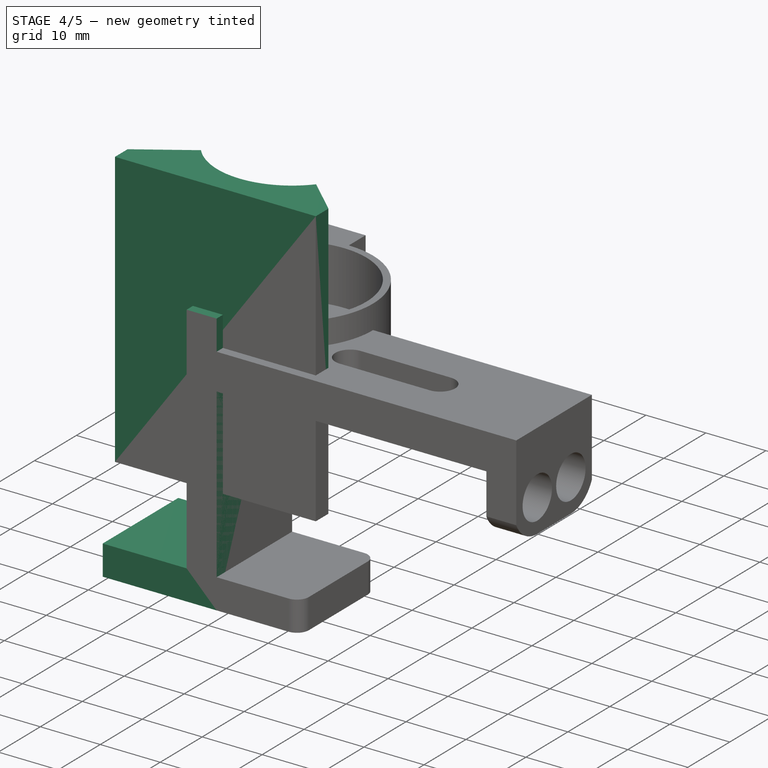
[diagram: stage 4 of 5 — iso view after this stage's code; geometry added in this stage tinted green]
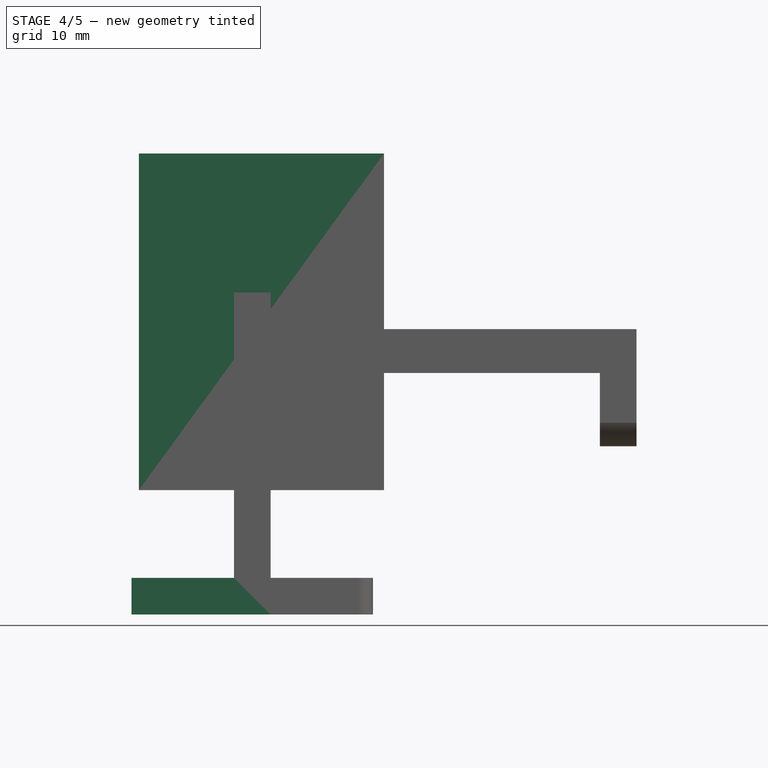
[diagram: stage 4 of 5 — front view after this stage's code; geometry added in this stage tinted green]
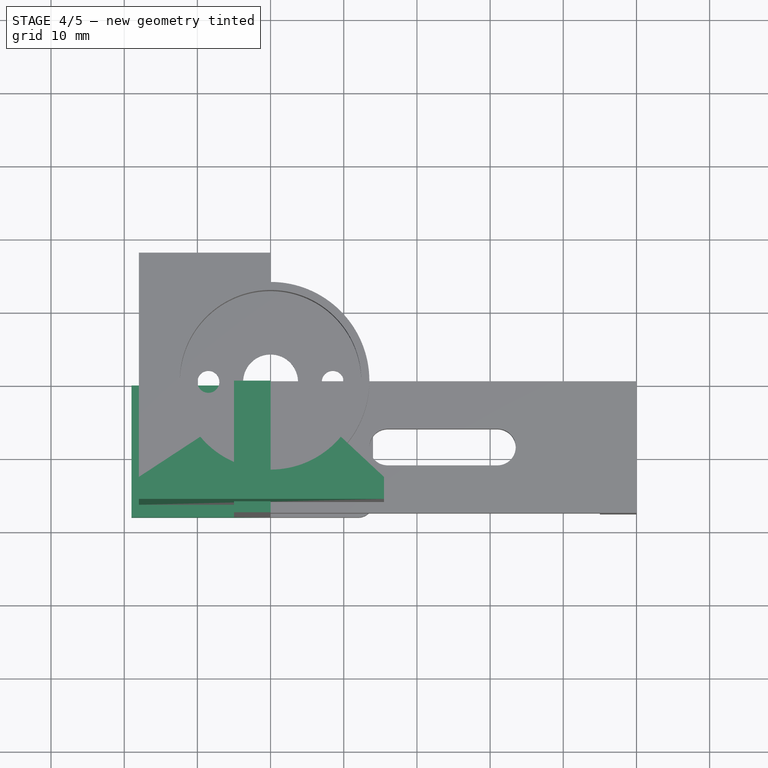
[diagram: stage 4 of 5 — top view after this stage's code; geometry added in this stage tinted green]
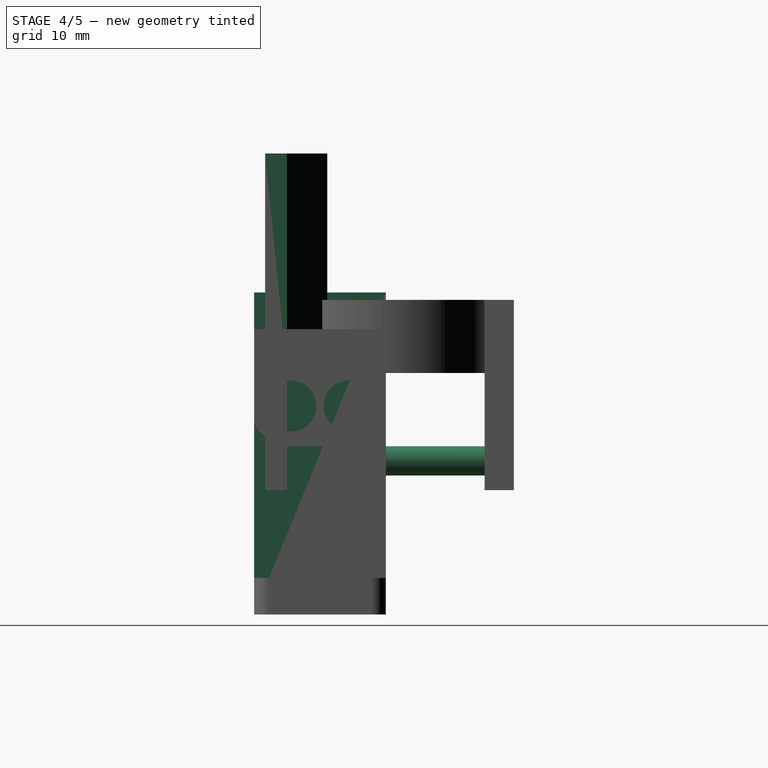
[diagram: stage 4 of 5 — right view after this stage's code; geometry added in this stage tinted green]
FEATURE [PartDesign::Pad] Pad005
  Direction = (0,-1,2e-16)
  Length = 18
  Length2 = 10
  Placement = pos=(0,0,0) rot=(1,0,0;1.5708rad)
  Profile = -> Sketch011
  ReferenceAxis = -> Sketch011 [N_Axis]
  Refine = true
  Suppressed = false
  Type = 0
  expr: Length = VarSet.blindTopPad
FEATURE [Sketcher::SketchObject] Sketch017
  ArcFitTolerance = 1e-06
  AttachmentSupport = -> [XZ_Plane001]
  FullyConstrained = true
  MakeInternals = false
  MapMode = 5
  Placement = pos=(0,0,0) rot=(1,0,0;1.5708rad)
  sketch-geometry (1):
    g0: Circle CenterX=-13 CenterY=-12 CenterZ=0 NormalX=0 NormalY=0 NormalZ=1 AngleXU=0 Radius=2
  constraints (3):
    c: Radius(g0) = 2
    c: DistanceY(g0,g-1) = 12
    c: DistanceX(g0,g-1) = 13
FEATURE [PartDesign::Pad] Pad008
  BaseFeature = -> Pad007
  Direction = (0,-1,2e-16)
  Length = 20
  Length2 = 10
  Profile = -> Sketch017
  ReferenceAxis = -> Sketch017 [N_Axis]
  Refine = true
  Suppressed = false
  Type = 2
  expr: Length = 20 mm
FEATURE [PartDesign::Pad] Pad009
  BaseFeature = -> Pad008
  Direction = (0,-1,2e-16)
  Length = 10
  Length2 = 10
  Profile = -> Sketch017
  ReferenceAxis = -> Sketch017 [N_Axis]
  Refine = true
  Reversed = true
  Suppressed = false
  Type = 2
FEATURE [Sketcher::SketchObject] Sketch018
  ArcFitTolerance = 1e-06
  AttachmentSupport = -> [XY_Plane001]
  ExternalGeometry = -> [Sketch016,Pad009]
  FullyConstrained = true
  MakeInternals = false
  MapMode = 5
  sketch-geometry (7):
    g0: ArcOfCircle CenterX=0 CenterY=0 CenterZ=0 NormalX=0 NormalY=0 NormalZ=1 AngleXU=0 Radius=12.5 StartAngle=3.83609 EndAngle=5.58869
    g1: LineSegment StartX=9.60469 StartY=-8 StartZ=0 EndX=15.5 EndY=-13.5 EndZ=0
    g2: LineSegment StartX=15.5 StartY=-16.5 StartZ=0 EndX=-18 EndY=-16.5 EndZ=0
    g3: LineSegment StartX=-18 StartY=-13.5 StartZ=0 EndX=-9.60469 EndY=-8 EndZ=0
    g4: LineSegment [constr] StartX=-9.60469 StartY=-8 StartZ=0 EndX=9.60469 EndY=-8 EndZ=0
    g5: LineSegment StartX=-18 StartY=-13.5 StartZ=0 EndX=-18 EndY=-16.5 EndZ=0
    g6: LineSegment StartX=15.5 StartY=-16.5 StartZ=0 EndX=15.5 EndY=-13.5 EndZ=0
  constraints (16):
    c: Coincident(g0,g-1)
    c: Coincident(g1,g-6)
    c: Coincident(g1,g-5)
    c: Coincident(g2,g-3)
    c: Coincident(g2,g-3)
    c: Coincident(g3,g-4)
    c: Coincident(g4,g3)
    c: Coincident(g4,g1)
    c: Horizontal(g4)
    c: PointOnObject(g0,g1)
    c: Coincident(g0,g3)
    c: Tangent(g0,g-6) = -1.5708
    c: Coincident(g5,g3)
    c: Coincident(g5,g2)
    c: Coincident(g6,g2)
    c: Coincident(g6,g1)
FEATURE [PartDesign::Pad] Pad010
  BaseFeature = -> Pad009
  Direction = (0,0,1)
  Length = 30
  Length2 = 10
  Profile = -> Sketch018
  ReferenceAxis = -> Sketch018 [N_Axis]
  Refine = true
  Suppressed = false
  Type = 0
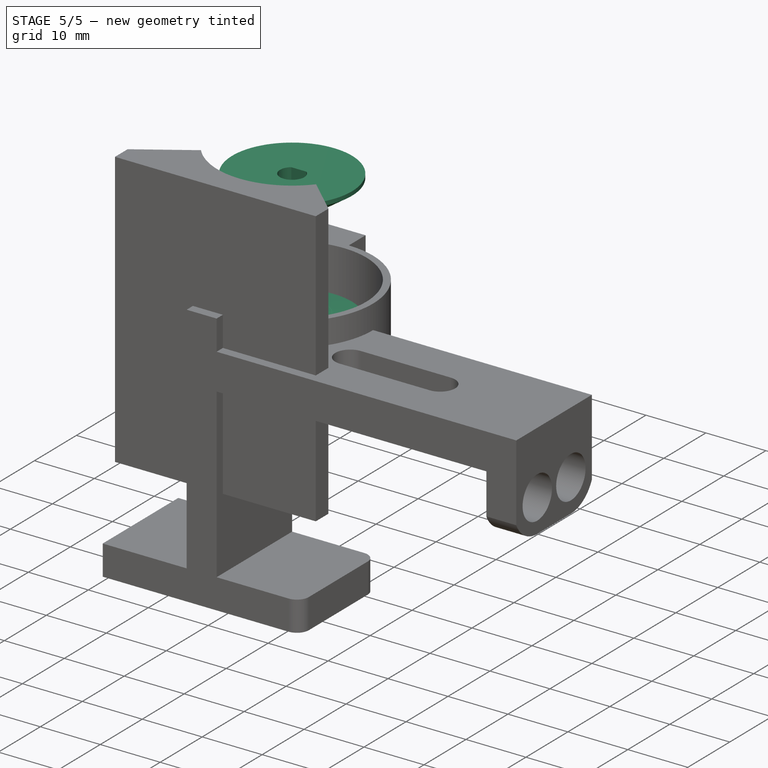
[diagram: stage 5 of 5 — iso view after this stage's code; geometry added in this stage tinted green]
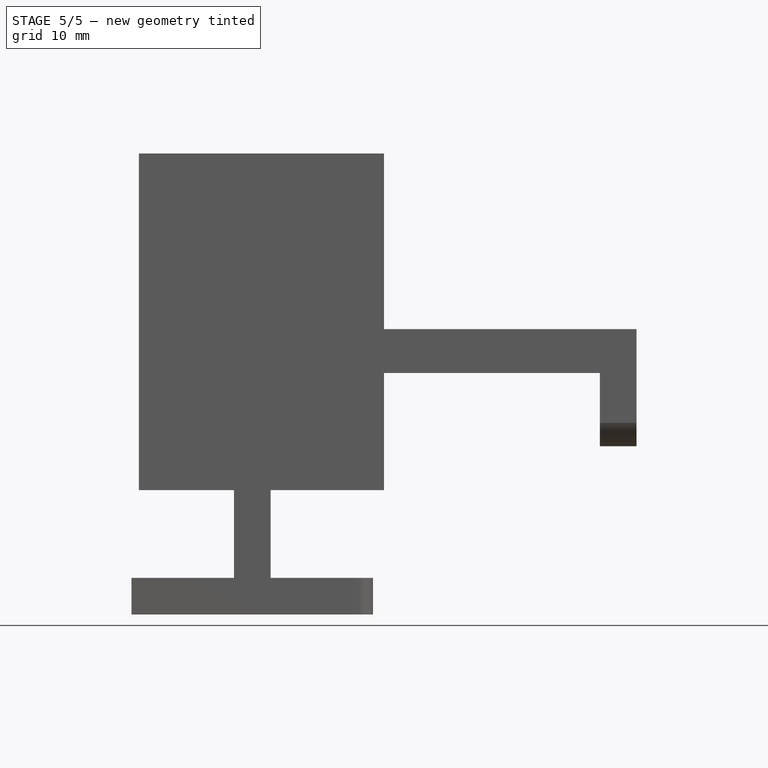
[diagram: stage 5 of 5 — front view after this stage's code; geometry added in this stage tinted green]
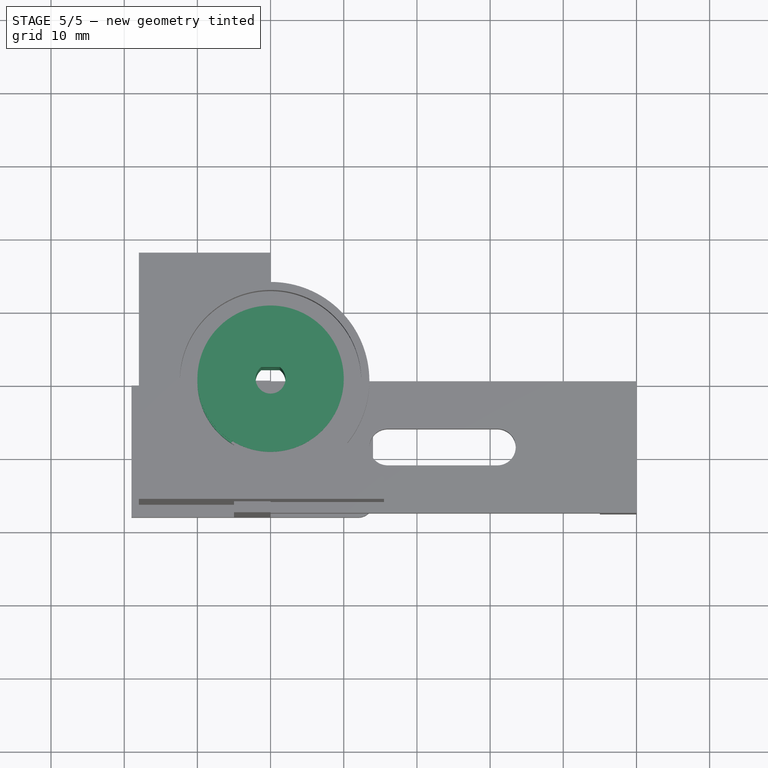
[diagram: stage 5 of 5 — top view after this stage's code; geometry added in this stage tinted green]
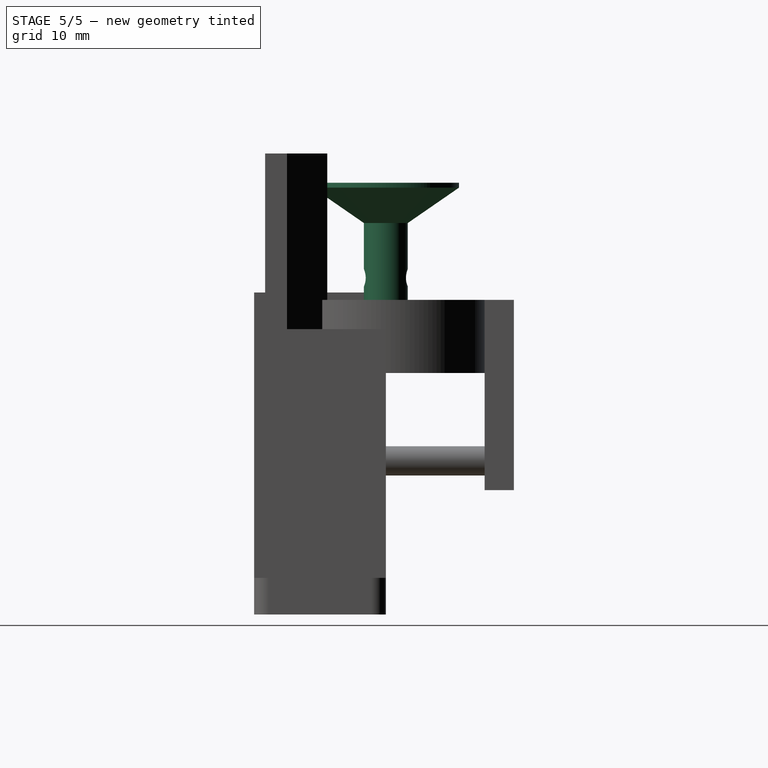
[diagram: stage 5 of 5 — right view after this stage's code; geometry added in this stage tinted green]
FEATURE [Sketcher::SketchObject] Sketch
  ArcFitTolerance = 1e-06
  AttachmentSupport = -> [XY_Plane]
  FullyConstrained = true
  MakeInternals = false
  MapMode = 5
  expr: Constraints[2] = VarSet.motorShaftR
  expr: Constraints[3] = VarSet.motorShaftHolderR
  expr: Constraints[6] = VarSet.motorShaftSide
  sketch-geometry (6):
    g0: Circle [constr] CenterX=0 CenterY=0 CenterZ=0 NormalX=0 NormalY=0 NormalZ=1 AngleXU=0 Radius=10
    g1: Circle [constr] CenterX=0 CenterY=0 CenterZ=0 NormalX=0 NormalY=0 NormalZ=1 AngleXU=0 Radius=2.04
    g2: LineSegment [constr] StartX=0 StartY=0 StartZ=0 EndX=0 EndY=1.6 EndZ=0
    g3: Circle CenterX=0 CenterY=0 CenterZ=0 NormalX=0 NormalY=0 NormalZ=1 AngleXU=0 Radius=10
    g4: ArcOfCircle CenterX=0 CenterY=0 CenterZ=0 NormalX=0 NormalY=0 NormalZ=1 AngleXU=0 Radius=2.04 StartAngle=2.24 EndAngle=7.18477
    g5: LineSegment StartX=-1.26554 StartY=1.6 StartZ=0 EndX=1.26554 EndY=1.6 EndZ=0
  constraints (15):
    c: Coincident(g0,g-1)
    c: Coincident(g1,g0)
    c: Radius(g1) = 2.04
    c: Radius(g0) = 10
    c: Coincident(g2,g0)
    c: PointOnObject(g2,g-2)
    c: DistanceY(g2,g2) = 1.6
    c: Coincident(g3,g0)
    c: Equal(g3,g0)
    c: Coincident(g4,g0)
    c: Equal(g4,g1)
    c: Coincident(g5,g4)
    c: Coincident(g5,g4)
    c: Horizontal(g5)
    c: PointOnObject(g2,g5)
FEATURE [App::VarSet] VarSet
  MotorShaftHookLen = 26
  MotorSupportWireSidelen = 18
  blindScrewHoleR = 5
  blindTopBottomSupport = 14
  blindTopConnOpening = 6
  blindTopConnThickness = 6
  blindTopHeight = 28
  blindTopPad = 18
  blindTopSideScrewHoleToSide = 5
  blindTopThickness = 5
  blindTopWidth = 45
  m3ScrewTight = 1.4
  motorHolderThickness = 1
  motorOutsideR = 12.5
  motorR = 12.5
  motorScrewToCenterR = 8.5
  motorShaftHolderR = 10
  motorShaftR = 2.04
  motorShaftSide = 1.6
  motorTopHoleR = 3.75
  originalTopBlindHangerWidth = 18
FEATURE [Spreadsheet::Sheet] Spreadsheet
  cells = A1='motorR; B1(motorR)==25 / 2
FEATURE [PartDesign::Pad] Pad
  Direction = (0,0,1)
  Length = 26
  Length2 = 10
  Profile = -> Sketch
  ReferenceAxis = -> Sketch [N_Axis]
  Refine = true
  Suppressed = false
  Type = 0
  expr: Length = VarSet.MotorShaftHookLen
FEATURE [Sketcher::SketchObject] Sketch001
  ArcFitTolerance = 1e-06
  AttachmentSupport = -> [XZ_Plane]
  FullyConstrained = false
  MakeInternals = false
  MapMode = 5
  Placement = pos=(0,0,0) rot=(1,0,0;1.5708rad)
  expr: Constraints[11] = 4 mm
  expr: Constraints[2] = VarSet.MotorShaftHookLen
  expr: Constraints[3] = VarSet.motorShaftHolderR
  sketch-geometry (6):
    g0: LineSegment [constr] StartX=0 StartY=0 StartZ=0 EndX=0 EndY=26 EndZ=0
    g1: LineSegment [constr] StartX=10 StartY=25.3301 StartZ=0 EndX=10 EndY=4 EndZ=0
    g2: LineSegment StartX=10 StartY=25.3301 StartZ=0 EndX=3 EndY=20.5 EndZ=0
    g3: LineSegment StartX=3 StartY=20.5 StartZ=0 EndX=3 EndY=5.5 EndZ=0
    g4: LineSegment StartX=3 StartY=5.5 StartZ=0 EndX=10 EndY=4 EndZ=0
    g5: LineSegment StartX=10 StartY=4 StartZ=0 EndX=10 EndY=25.3301 EndZ=0
  constraints (15):
    c: Coincident(g0,g-1)
    c: PointOnObject(g0,g-2)
    c: DistanceY(g0,g0) = 26
    c: DistanceX(g0,g1) = 10
    c: Coincident(g2,g1)
    c: Coincident(g3,g2)
    c: Coincident(g4,g1)
    c: Coincident(g5,g1)
    c: Coincident(g5,g2)
    c: DistanceY(g1,g3) = 1.5
    c: Vertical(g5)
    c: DistanceY(g0,g1) = 4
    c: Vertical(g3)
    c: DistanceX(g0,g3) = 3
    c: Coincident(g4,g3)
FEATURE [PartDesign::Groove] Groove
  Angle = 360
  Angle2 = 60
  Axis = (0,2e-16,1)
  Base = (0,0,0)
  BaseFeature = -> Pad
  Profile = -> Sketch001
  ReferenceAxis = -> Sketch001 [V_Axis]
  Refine = true
  Suppressed = false
  Type = 0
FEATURE [Sketcher::SketchObject] Sketch004
  ArcFitTolerance = 1e-06
  AttachmentSupport = -> [XY_Plane002]
  FullyConstrained = true
  MakeInternals = false
  MapMode = 5
  sketch-geometry (6):
    g0: Circle [constr] CenterX=0 CenterY=0 CenterZ=0 NormalX=0 NormalY=0 NormalZ=1 AngleXU=0 Radius=5.5
    g1: Circle [constr] CenterX=0 CenterY=0 CenterZ=0 NormalX=0 NormalY=0 NormalZ=1 AngleXU=0 Radius=2.05
    g2: LineSegment [constr] StartX=0 StartY=0 StartZ=0 EndX=0 EndY=1.6 EndZ=0
    g3: Circle CenterX=0 CenterY=0 CenterZ=0 NormalX=0 NormalY=0 NormalZ=1 AngleXU=0 Radius=5.5
    g4: ArcOfCircle CenterX=0 CenterY=0 CenterZ=0 NormalX=0 NormalY=0 NormalZ=1 AngleXU=0 Radius=2.05 StartAngle=2.24615 EndAngle=7.17863
    g5: LineSegment StartX=-1.2816 StartY=1.6 StartZ=0 EndX=1.2816 EndY=1.6 EndZ=0
  constraints (15):
    c: Coincident(g0,g-1)
    c: Coincident(g1,g0)
    c: Radius(g1) = 2.05
    c: Radius(g0) = 5.5
    c: Coincident(g2,g0)
    c: PointOnObject(g2,g-2)
    c: DistanceY(g2,g2) = 1.6
    c: Coincident(g3,g0)
    c: Equal(g3,g0)
    c: Coincident(g4,g0)
    c: Equal(g4,g1)
    c: Coincident(g5,g4)
    c: Coincident(g5,g4)
    c: Horizontal(g5)
    c: PointOnObject(g2,g5)
FEATURE [PartDesign::Pad] Pad003
  Direction = (0,0,1)
  Length = 5
  Length2 = 10
  Profile = -> Sketch004
  ReferenceAxis = -> Sketch004 [N_Axis]
  Refine = true
  Suppressed = false
  Type = 0
FEATURE [Sketcher::SketchObject] Sketch005
  ArcFitTolerance = 1e-06
  AttachmentSupport = -> [XY_Plane002]
  FullyConstrained = true
  MakeInternals = false
  MapMode = 5
FEATURE [PartDesign::Body] Body002  label="test"
  AllowCompound = false
  Group = -> [Sketch004,Pad003,Sketch005]
  Origin = -> Origin002
  Tip = -> Pad003
FEATURE [Sketcher::SketchObject] Sketch006
  ArcFitTolerance = 1e-06
  AttachmentSupport = -> [XZ_Plane]
  ExternalGeometry = -> [Sketch001]
  FullyConstrained = false
  MakeInternals = false
  MapMode = 5
  Placement = pos=(0,0,0) rot=(1,0,0;1.5708rad)
  expr: Constraints[1] = VarSet.m3ScrewTight
  sketch-geometry (3):
    g0: Circle [constr] CenterX=0 CenterY=3 CenterZ=0 NormalX=0 NormalY=0 NormalZ=1 AngleXU=0 Radius=1.4
    g1: Circle CenterX=0 CenterY=13 CenterZ=0 NormalX=0 NormalY=0 NormalZ=1 AngleXU=0 Radius=1.2
    g2: LineSegment [constr] StartX=-4.53036 StartY=13 StartZ=0 EndX=17.2337 EndY=13 EndZ=0
  constraints (7):
    c: PointOnObject(g0,g-2)
    c: Radius(g0) = 1.4
    c: DistanceY(g-1,g0) = 3
    c: PointOnObject(g1,g-2)
    c: Symmetric(g-3,g-3,g2)
    c: PointOnObject(g1,g2)
    c: Radius(g1) = 1.2
FEATURE [PartDesign::Pocket] Pocket
  BaseFeature = -> Groove
  Direction = (0,1,-2e-16)
  Length = 5
  Length2 = 5
  Midplane = true
  Profile = -> Sketch006
  ReferenceAxis = -> Sketch006 [N_Axis]
  Refine = true
  Suppressed = false
  Type = 1
FEATURE [Sketcher::SketchObject] Sketch014
  ArcFitTolerance = 1e-06
  AttachmentSupport = -> [YZ_Plane005]
  FullyConstrained = false
  MakeInternals = false
  MapMode = 5
  Placement = pos=(0,0,0) rot=(0.57735,0.57735,0.57735;2.0944rad)
  expr: Constraints[32] = VarSet.blindTopConnOpening
  expr: Constraints[8] = VarSet.blindTopPad
  expr: Constraints[9] = VarSet.blindTopConnThickness
  sketch-geometry (20):
    g0: LineSegment [constr] StartX=-18 StartY=6 StartZ=0 EndX=-18 EndY=0 EndZ=0
    g1: LineSegment [constr] StartX=-18 StartY=0 StartZ=0 EndX=0 EndY=0 EndZ=0
    g2: LineSegment [constr] StartX=0 StartY=0 StartZ=0 EndX=0 EndY=6 EndZ=0
    g3: LineSegment [constr] StartX=0 StartY=6 StartZ=0 EndX=-18 EndY=6 EndZ=0
    g4: LineSegment [constr] StartX=-12 StartY=6 StartZ=0 EndX=-12 EndY=0 EndZ=0
    g5: LineSegment [constr] StartX=-6 StartY=6 StartZ=0 EndX=-6 EndY=0 EndZ=0
    g6: LineSegment [constr] StartX=-18 StartY=6 StartZ=0 EndX=-18 EndY=7.84969 EndZ=0
    g7: LineSegment [constr] StartX=-18 StartY=7.84969 StartZ=0 EndX=-12 EndY=7.84969 EndZ=0
    g8: LineSegment [constr] StartX=-12 StartY=7.84969 StartZ=0 EndX=-12 EndY=6 EndZ=0
    g9: LineSegment [constr] StartX=-6 StartY=6 StartZ=0 EndX=-6 EndY=8.05821 EndZ=0
    g10: LineSegment [constr] StartX=-6 StartY=8.05821 StartZ=0 EndX=0 EndY=8.05821 EndZ=0
    g11: LineSegment [constr] StartX=0 StartY=8.05821 StartZ=0 EndX=0 EndY=6 EndZ=0
    g12: LineSegment StartX=-18 StartY=6 StartZ=0 EndX=-18 EndY=0 EndZ=0
    g13: LineSegment StartX=-18 StartY=0 StartZ=0 EndX=-12 EndY=0 EndZ=0
    g14: LineSegment StartX=-12 StartY=0 StartZ=0 EndX=-12 EndY=6 EndZ=0
    g15: LineSegment StartX=-12 StartY=6 StartZ=0 EndX=-18 EndY=6 EndZ=0
    g16: LineSegment StartX=-6 StartY=6 StartZ=0 EndX=-6 EndY=0 EndZ=0
    g17: LineSegment StartX=-6 StartY=0 StartZ=0 EndX=0 EndY=0 EndZ=0
    g18: LineSegment StartX=0 StartY=0 StartZ=0 EndX=0 EndY=6 EndZ=0
    g19: LineSegment StartX=0 StartY=6 StartZ=0 EndX=-6 EndY=6 EndZ=0
  constraints (53):
    c: Coincident(g0,g1)
    c: Coincident(g1,g2)
    c: Coincident(g2,g3)
    c: Coincident(g3,g0)
    c: Vertical(g0)
    c: Vertical(g2)
    c: Horizontal(g1)
    c: Horizontal(g3)
    c: DistanceX(g3,g3) = 18
    c: DistanceY(g2,g2) = 6
    c: Coincident(g1,g-1)
    c: PointOnObject(g4,g3)
    c: PointOnObject(g4,g1)
    c: Vertical(g4)
    c: PointOnObject(g5,g3)
    c: PointOnObject(g5,g1)
    c: Vertical(g5)
    c: Coincident(g6,g0)
    c: Vertical(g6)
    c: Coincident(g7,g6)
    c: Horizontal(g7)
    c: Coincident(g8,g7)
    c: Coincident(g8,g4)
    c: Coincident(g9,g5)
    c: Vertical(g9)
    c: Coincident(g10,g9)
    c: PointOnObject(g10,g-2)
    c: Horizontal(g10)
    c: Coincident(g11,g10)
    c: Coincident(g11,g2)
    c: Vertical(g8)
    c: Equal(g7,g10)
    c: DistanceX(g7,g9) = 6
    c: Coincident(g12,g13)
    c: Coincident(g13,g14)
    c: Coincident(g14,g15)
    c: Coincident(g15,g12)
    c: Vertical(g12)
    c: Vertical(g14)
    c: Horizontal(g13)
    c: Horizontal(g15)
    c: Coincident(g12,g0)
    c: Coincident(g13,g4)
    c: Coincident(g16,g17)
    c: Coincident(g17,g18)
    c: Coincident(g18,g19)
    c: Coincident(g19,g16)
    c: Vertical(g16)
    c: Vertical(g18)
    c: Horizontal(g17)
    c: Horizontal(g19)
    c: Coincident(g16,g5)
    c: Coincident(g17,g1)
FEATURE [PartDesign::Pocket] Pocket005
  BaseFeature = -> Pad005
  Direction = (-1,0,0)
  Length = 5
  Length2 = 5
  Placement = pos=(0,0,0) rot=(1,0,0;1.5708rad)
  Profile = -> Sketch014
  ReferenceAxis = -> Sketch014 [N_Axis]
  Refine = true
  Suppressed = false
  Type = 0
  expr: Length = VarSet.blindTopThickness
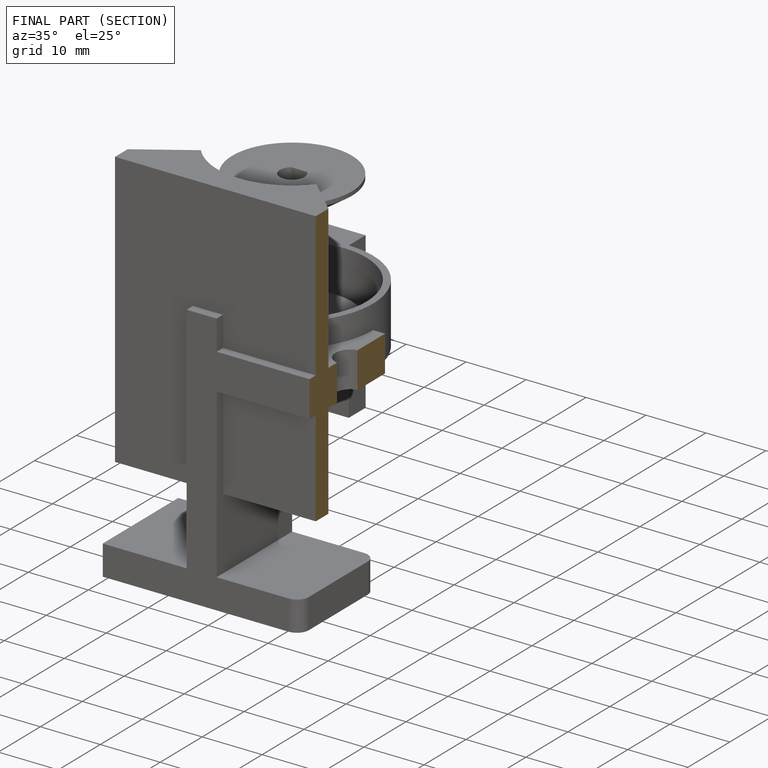
[diagram: finished part — half-section view (interior)]
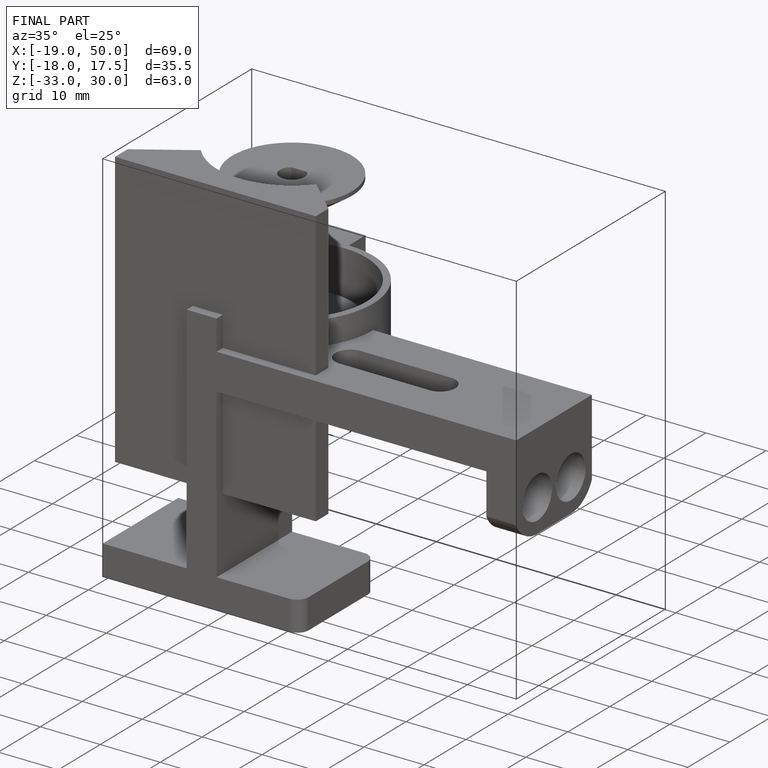
[diagram: finished part — iso view with bounding-box wireframe]
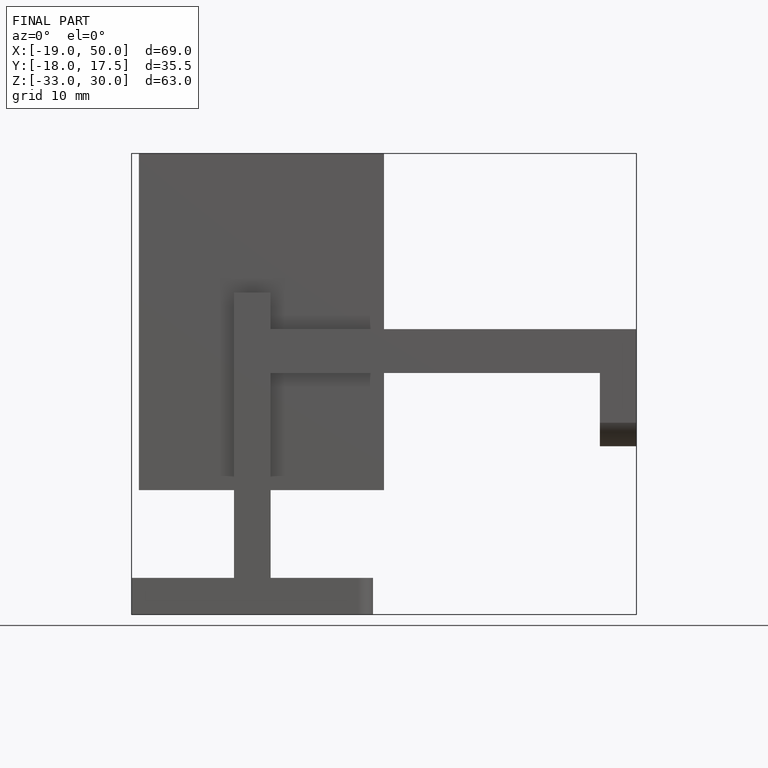
[diagram: finished part — front view with bounding-box wireframe]
